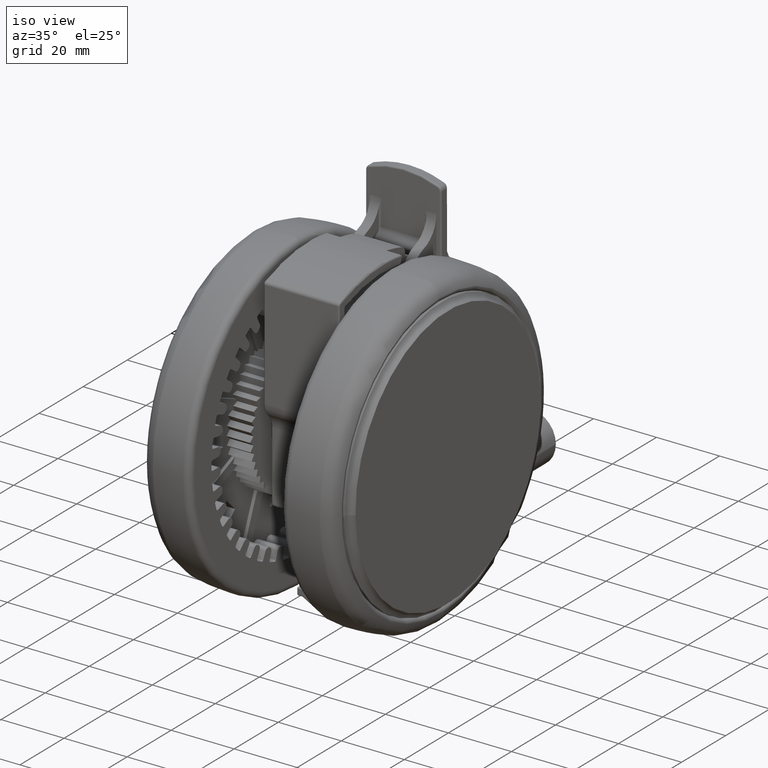
[diagram: clean part render]
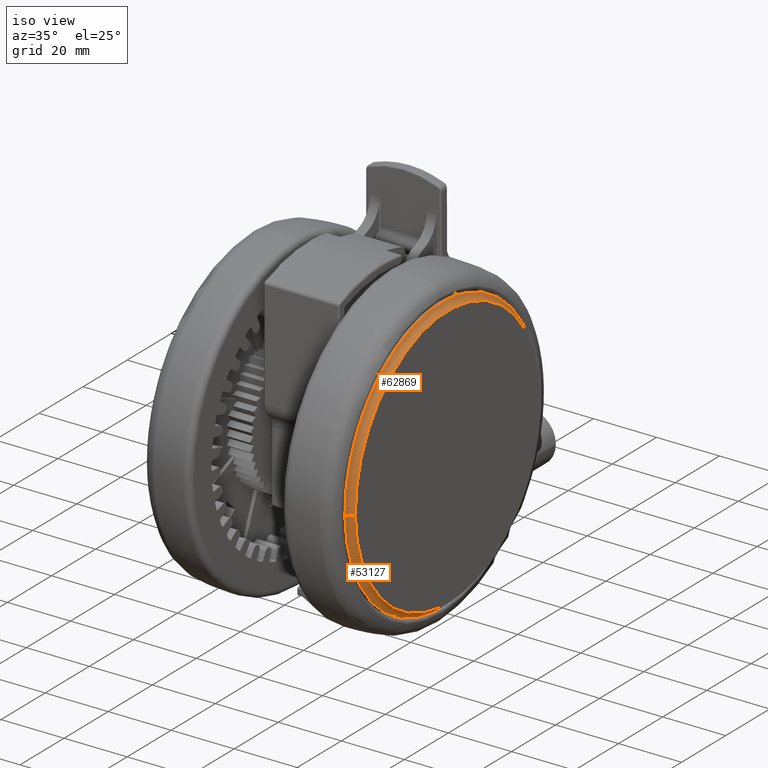
[diagram: same view with one multi-face feature highlighted, each face labeled with its STEP entity id]
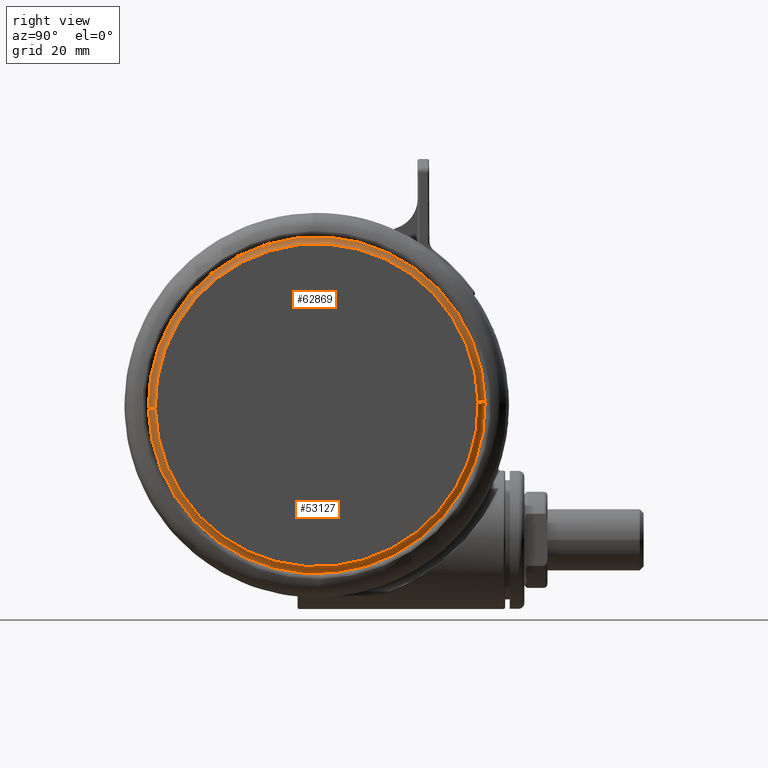
[diagram: same view with one multi-face feature highlighted, each face labeled with its STEP entity id]
A machine part, iso view. The highlighted faces form ONE feature: a constant-radius fillet chain: 2 tangent blend faces with common blend radius 2.0507 mm. The faces share edges in the B-rep.
A second angle (right view) of the same feature is appended — it is thin or edge-on in the first view.
Their STEP definitions:
[1] entity #53127 (Torus):
#1480 = AXIS2_PLACEMENT_3D ( 'NONE', #32601, #51683, #58011 ) ;
#3527 = CARTESIAN_POINT ( 'NONE',  ( -43.81162395316311400, 5.365376503968872300E-015, -2.091591727423864900 ) ) ;
#6675 = CIRCLE ( 'NONE', #36957, 2.050731300344617500 ) ;
#8573 = EDGE_CURVE ( 'NONE', #59939, #74370, #6675, .T. ) ;
#11874 = CARTESIAN_POINT ( 'NONE',  ( 0.0000000000000000000, 0.0000000000000000000, -0.05476190476190365100 ) ) ;
#12644 = ORIENTED_EDGE ( 'NONE', *, *, #17988, .T. ) ;
#15474 = VERTEX_POINT ( 'NONE', #33248 ) ;
#16028 = ORIENTED_EDGE ( 'NONE', *, *, #52933, .F. ) ;
#16291 = CIRCLE ( 'NONE', #32692, 41.99926869965538100 ) ;
#17988 = EDGE_CURVE ( 'NONE', #15474, #74370, #72851, .T. ) ;
#18233 = DIRECTION ( 'NONE',  ( 1.000000000000000000, 0.0000000000000000000, 0.0000000000000000000 ) ) ;
#20878 = DIRECTION ( 'NONE',  ( 1.224646799147353200E-016, 1.000000000000000000, -0.0000000000000000000 ) ) ;
#32601 = CARTESIAN_POINT ( 'NONE',  ( 0.0000000000000000000, 0.0000000000000000000, -0.05476190476190339500 ) ) ;
#32692 = AXIS2_PLACEMENT_3D ( 'NONE', #11874, #56113, #18233 ) ;
#32980 = DIRECTION ( 'NONE',  ( 0.0000000000000000000, -1.000000000000000000, 0.0000000000000000000 ) ) ;
#33248 = CARTESIAN_POINT ( 'NONE',  ( 43.81162395316311400, 0.0000000000000000000, -2.091591727423864900 ) ) ;
#36714 = CARTESIAN_POINT ( 'NONE',  ( 41.99926869965538100, 0.0000000000000000000, -0.05476190476190365100 ) ) ;
#36957 = AXIS2_PLACEMENT_3D ( 'NONE', #58754, #20878, #65064 ) ;
#37807 = DIRECTION ( 'NONE',  ( 0.0000000000000000000, 0.0000000000000000000, 1.000000000000000000 ) ) ;
#50911 = FACE_OUTER_BOUND ( 'NONE', #65599, .T. ) ;
#51683 = DIRECTION ( 'NONE',  ( 0.0000000000000000000, 0.0000000000000000000, 1.000000000000000000 ) ) ;
#52524 = EDGE_CURVE ( 'NONE', #72607, #15474, #79602, .T. ) ;
#52933 = EDGE_CURVE ( 'NONE', #72607, #59939, #16291, .T. ) ;
#53127 = ADVANCED_FACE ( 'NONE', ( #50911 ), #67661, .F. ) ;
#53862 = CARTESIAN_POINT ( 'NONE',  ( -41.99926869965538100, 5.143426997956257600E-015, -0.05476190476190365100 ) ) ;
#56113 = DIRECTION ( 'NONE',  ( 0.0000000000000000000, 0.0000000000000000000, 1.000000000000000000 ) ) ;
#57080 = AXIS2_PLACEMENT_3D ( 'NONE', #75597, #37807, #81936 ) ;
#58011 = DIRECTION ( 'NONE',  ( 1.000000000000000000, 0.0000000000000000000, 0.0000000000000000000 ) ) ;
#58754 = CARTESIAN_POINT ( 'NONE',  ( -44.04999999999999700, 5.394569150244090700E-015, -0.05476190476190339500 ) ) ;
#59939 = VERTEX_POINT ( 'NONE', #53862 ) ;
#65064 = DIRECTION ( 'NONE',  ( -1.000000000000000000, 1.224646799147356900E-016, 0.0000000000000000000 ) ) ;
#65599 = EDGE_LOOP ( 'NONE', ( #16028, #73804, #12644, #76440 ) ) ;
#67661 = TOROIDAL_SURFACE ( 'NONE', #1480, 44.04999999999999700, 2.050731300344620100 ) ;
#70803 = CARTESIAN_POINT ( 'NONE',  ( 44.04999999999999700, 0.0000000000000000000, -0.05476190476190339500 ) ) ;
#72607 = VERTEX_POINT ( 'NONE', #36714 ) ;
#72851 = CIRCLE ( 'NONE', #57080, 43.81162395321010200 ) ;
#73804 = ORIENTED_EDGE ( 'NONE', *, *, #52524, .T. ) ;
#73939 = AXIS2_PLACEMENT_3D ( 'NONE', #70803, #32980, #77141 ) ;
#74370 = VERTEX_POINT ( 'NONE', #3527 ) ;
#75597 = CARTESIAN_POINT ( 'NONE',  ( 0.0000000000000000000, 0.0000000000000000000, -2.091591727423864900 ) ) ;
#76440 = ORIENTED_EDGE ( 'NONE', *, *, #8573, .F. ) ;
#77141 = DIRECTION ( 'NONE',  ( 0.0000000000000000000, 0.0000000000000000000, -1.000000000000000000 ) ) ;
#79602 = CIRCLE ( 'NONE', #73939, 2.050731300344620100 ) ;
#81936 = DIRECTION ( 'NONE',  ( 1.000000000000000000, 0.0000000000000000000, 0.0000000000000000000 ) ) ;
[2] entity #62869 (Torus):
#3527 = CARTESIAN_POINT ( 'NONE',  ( -43.81162395316311400, 5.365376503968872300E-015, -2.091591727423864900 ) ) ;
#4329 = DIRECTION ( 'NONE',  ( 0.0000000000000000000, 0.0000000000000000000, 1.000000000000000000 ) ) ;
#5660 = ORIENTED_EDGE ( 'NONE', *, *, #46980, .T. ) ;
#5919 = ORIENTED_EDGE ( 'NONE', *, *, #8573, .T. ) ;
#6381 = DIRECTION ( 'NONE',  ( 0.0000000000000000000, 0.0000000000000000000, 1.000000000000000000 ) ) ;
#6675 = CIRCLE ( 'NONE', #36957, 2.050731300344617500 ) ;
#8573 = EDGE_CURVE ( 'NONE', #59939, #74370, #6675, .T. ) ;
#10405 = CIRCLE ( 'NONE', #45088, 43.81162395321010200 ) ;
#15474 = VERTEX_POINT ( 'NONE', #33248 ) ;
#19288 = CARTESIAN_POINT ( 'NONE',  ( 0.0000000000000000000, 0.0000000000000000000, -0.05476190476190339500 ) ) ;
#20878 = DIRECTION ( 'NONE',  ( 1.224646799147353200E-016, 1.000000000000000000, -0.0000000000000000000 ) ) ;
#25594 = EDGE_LOOP ( 'NONE', ( #27771, #5919, #5660, #42561 ) ) ;
#27771 = ORIENTED_EDGE ( 'NONE', *, *, #47645, .F. ) ;
#32980 = DIRECTION ( 'NONE',  ( 0.0000000000000000000, -1.000000000000000000, 0.0000000000000000000 ) ) ;
#33248 = CARTESIAN_POINT ( 'NONE',  ( 43.81162395316311400, 0.0000000000000000000, -2.091591727423864900 ) ) ;
#36714 = CARTESIAN_POINT ( 'NONE',  ( 41.99926869965538100, 0.0000000000000000000, -0.05476190476190365100 ) ) ;
#36776 = CARTESIAN_POINT ( 'NONE',  ( 0.0000000000000000000, 0.0000000000000000000, -0.05476190476190365100 ) ) ;
#36957 = AXIS2_PLACEMENT_3D ( 'NONE', #58754, #20878, #65064 ) ;
#42163 = CARTESIAN_POINT ( 'NONE',  ( 0.0000000000000000000, 0.0000000000000000000, -2.091591727423864900 ) ) ;
#42561 = ORIENTED_EDGE ( 'NONE', *, *, #52524, .F. ) ;
#42901 = AXIS2_PLACEMENT_3D ( 'NONE', #19288, #6381, #63519 ) ;
#43165 = DIRECTION ( 'NONE',  ( 1.000000000000000000, 0.0000000000000000000, 0.0000000000000000000 ) ) ;
#45088 = AXIS2_PLACEMENT_3D ( 'NONE', #42163, #4329, #48541 ) ;
#46980 = EDGE_CURVE ( 'NONE', #74370, #15474, #10405, .T. ) ;
#47645 = EDGE_CURVE ( 'NONE', #59939, #72607, #62805, .T. ) ;
#48541 = DIRECTION ( 'NONE',  ( 1.000000000000000000, 0.0000000000000000000, 0.0000000000000000000 ) ) ;
#52524 = EDGE_CURVE ( 'NONE', #72607, #15474, #79602, .T. ) ;
#53862 = CARTESIAN_POINT ( 'NONE',  ( -41.99926869965538100, 5.143426997956257600E-015, -0.05476190476190365100 ) ) ;
#54711 = TOROIDAL_SURFACE ( 'NONE', #42901, 44.04999999999999700, 2.050731300344620100 ) ;
#58754 = CARTESIAN_POINT ( 'NONE',  ( -44.04999999999999700, 5.394569150244090700E-015, -0.05476190476190339500 ) ) ;
#58841 = AXIS2_PLACEMENT_3D ( 'NONE', #36776, #80928, #43165 ) ;
#59939 = VERTEX_POINT ( 'NONE', #53862 ) ;
#62805 = CIRCLE ( 'NONE', #58841, 41.99926869965538100 ) ;
#62869 = ADVANCED_FACE ( 'NONE', ( #75438 ), #54711, .F. ) ;
#63519 = DIRECTION ( 'NONE',  ( 1.000000000000000000, 0.0000000000000000000, 0.0000000000000000000 ) ) ;
#65064 = DIRECTION ( 'NONE',  ( -1.000000000000000000, 1.224646799147356900E-016, 0.0000000000000000000 ) ) ;
#70803 = CARTESIAN_POINT ( 'NONE',  ( 44.04999999999999700, 0.0000000000000000000, -0.05476190476190339500 ) ) ;
#72607 = VERTEX_POINT ( 'NONE', #36714 ) ;
#73939 = AXIS2_PLACEMENT_3D ( 'NONE', #70803, #32980, #77141 ) ;
#74370 = VERTEX_POINT ( 'NONE', #3527 ) ;
#75438 = FACE_OUTER_BOUND ( 'NONE', #25594, .T. ) ;
#77141 = DIRECTION ( 'NONE',  ( 0.0000000000000000000, 0.0000000000000000000, -1.000000000000000000 ) ) ;
#79602 = CIRCLE ( 'NONE', #73939, 2.050731300344620100 ) ;
#80928 = DIRECTION ( 'NONE',  ( 0.0000000000000000000, 0.0000000000000000000, 1.000000000000000000 ) ) ;